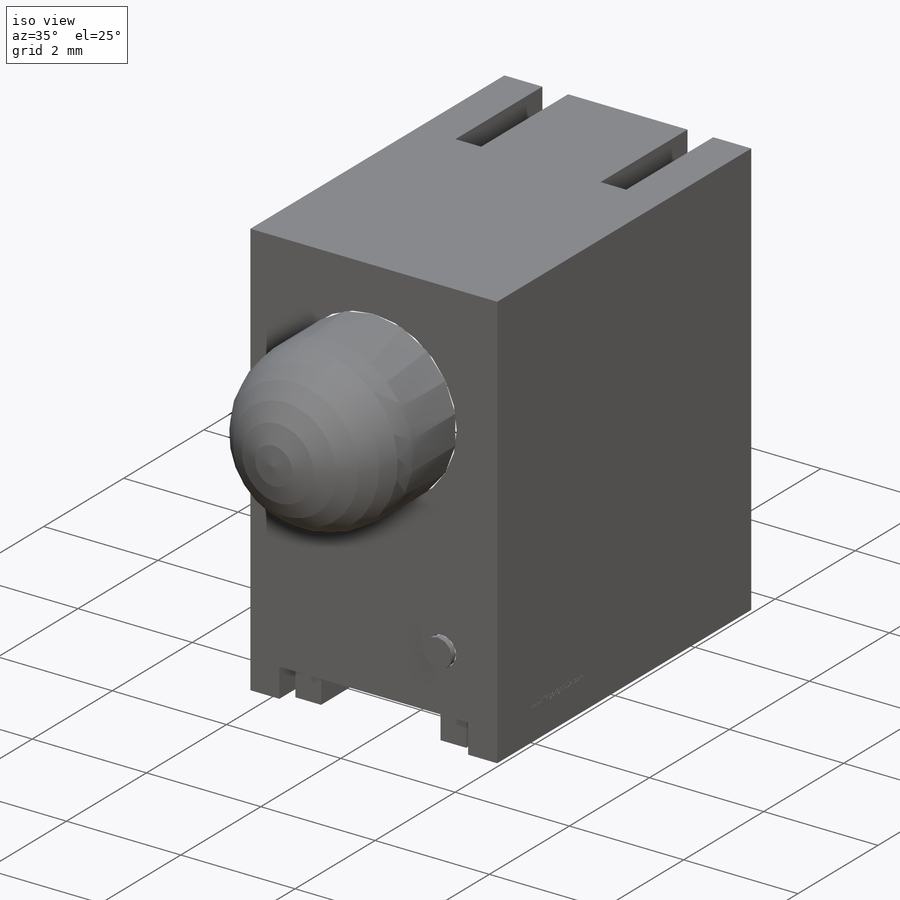
[diagram: iso view]
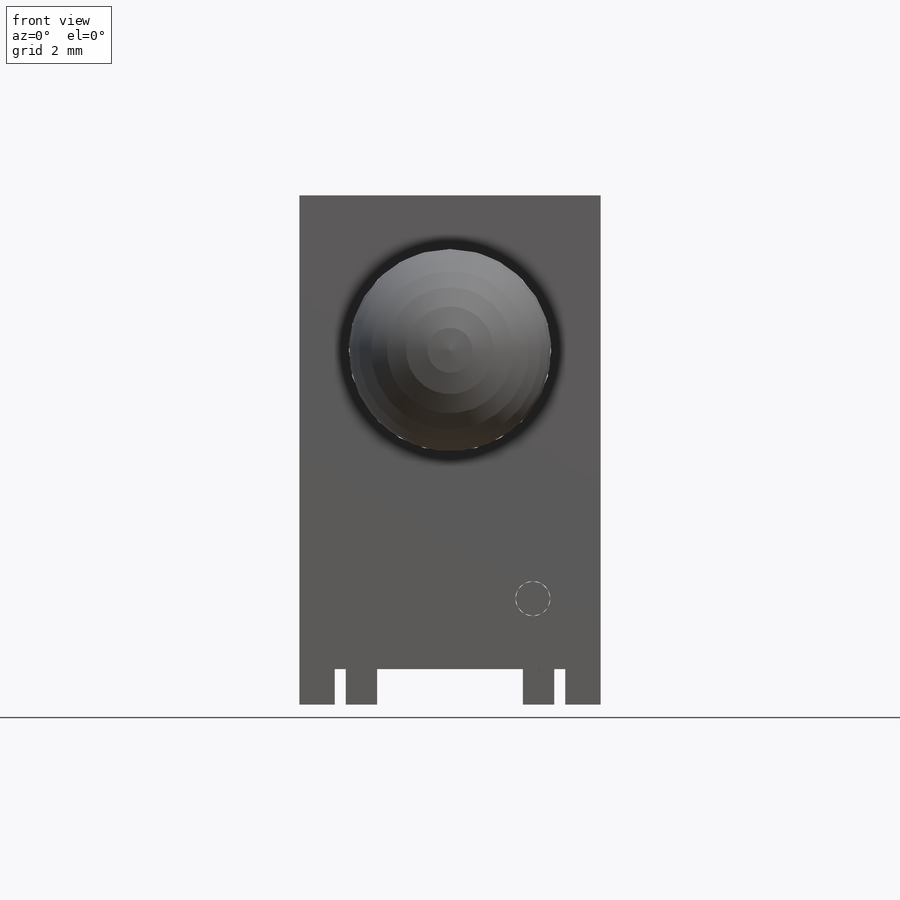
[diagram: front view]
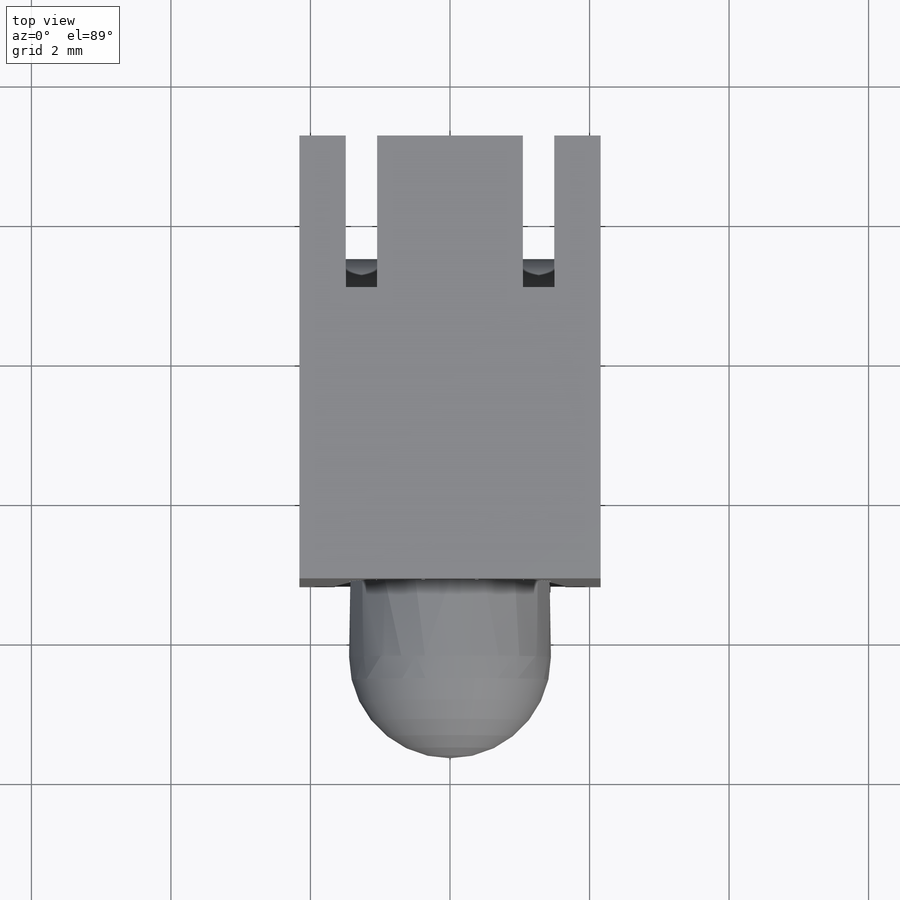
[diagram: top view]
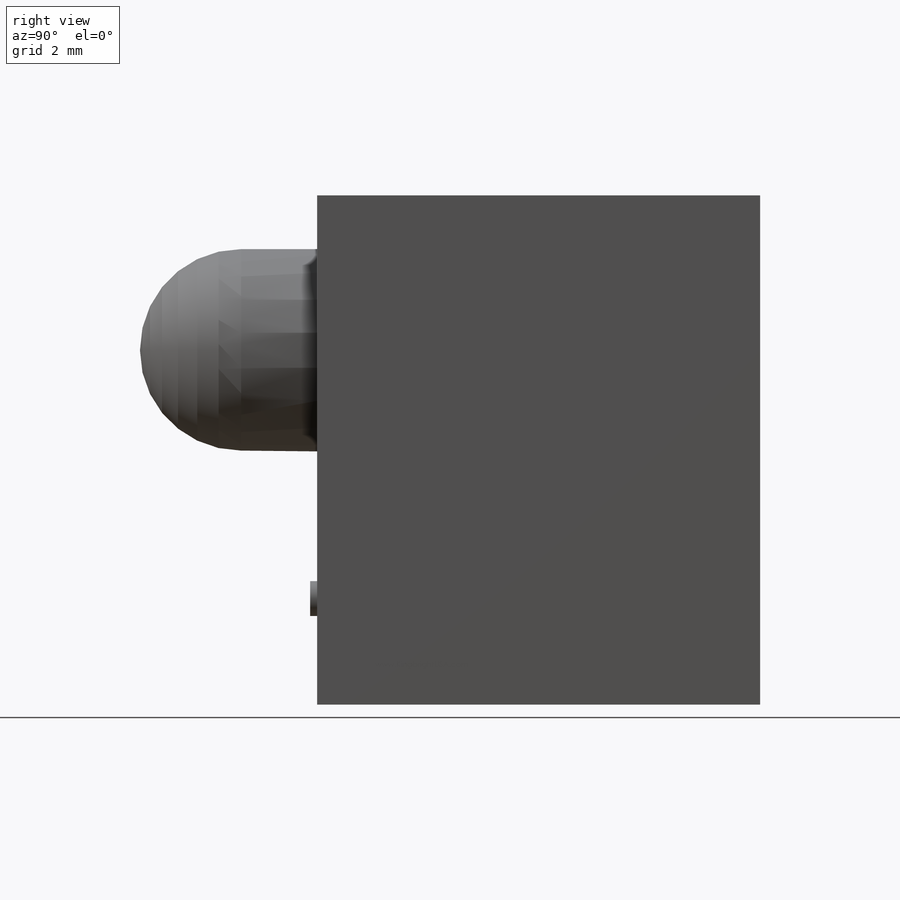
[diagram: right view]
SOLIDWORKS PART (.sldprt)
format: sldprt  version: not decoded by parser v0  size: 675,328 bytes
history: native  units: mm
features: sketch x9, extrude x5, cut_extrude x3, fillet x2, material x1, revolve x1 (+11 scaffold rows collapsed)
feature tree (32):
  scaffold x11  (default folders/planes/origin — collapsed)
  material  "Material <not specified>"
  sketch  "Sketch1"  dims[D4=2.9mm D1=7.3mm D2=6.35mm D3=2.54mm D5=5.08mm]
  extrude  "Extrude1"  Depth=4.32mm
  revolve  "Revolve1"  [1 undecoded]
  sketch  "Sketch1<3>"  dims[D1=360.0deg]
  sketch  "Sketch2"  dims[D4=0.5mm D1=0.508mm D2=0.508mm D3=0.508mm]
  cut_extrude  "Cut-Extrude1"  [1 undecoded]
  extrude  "Extrude2"  [1 undecoded]
  sketch  "Sketch2<3>"  dims[D1=0.1mm]
  sketch  "Sketch3"  dims[D1=0.45mm D2=0.45mm D3=4.4mm D4=2.54mm]
  cut_extrude  "Cut-Extrude2"  [1 undecoded]
  extrude  "Extrude3"  [1 undecoded]
  sketch  "Sketch3<3>"
  extrude  "Extrude4"  [1 undecoded]
  sketch  "Sketch3<4>"  dims[D1=0.508mm]
  fillet  "Fillet1"  Radius=0.5mm
  sketch  "Sketch4"  dims[D1=3.0mm]
  cut_extrude  "Cut-Extrude3"  Depth=0.01mm
  sketch  "Sketch6"
  extrude  "Extrude5"  Depth=4mm
  fillet  "Fillet2"  Radius=0.5mm
decode coverage: 12 of 20 modeling features carry decoded parameters
note: 6 parameter values undecoded
summary: no parameter record found for 6 features
note: suppression state not decoded; provenance and decode notes live in map.json
